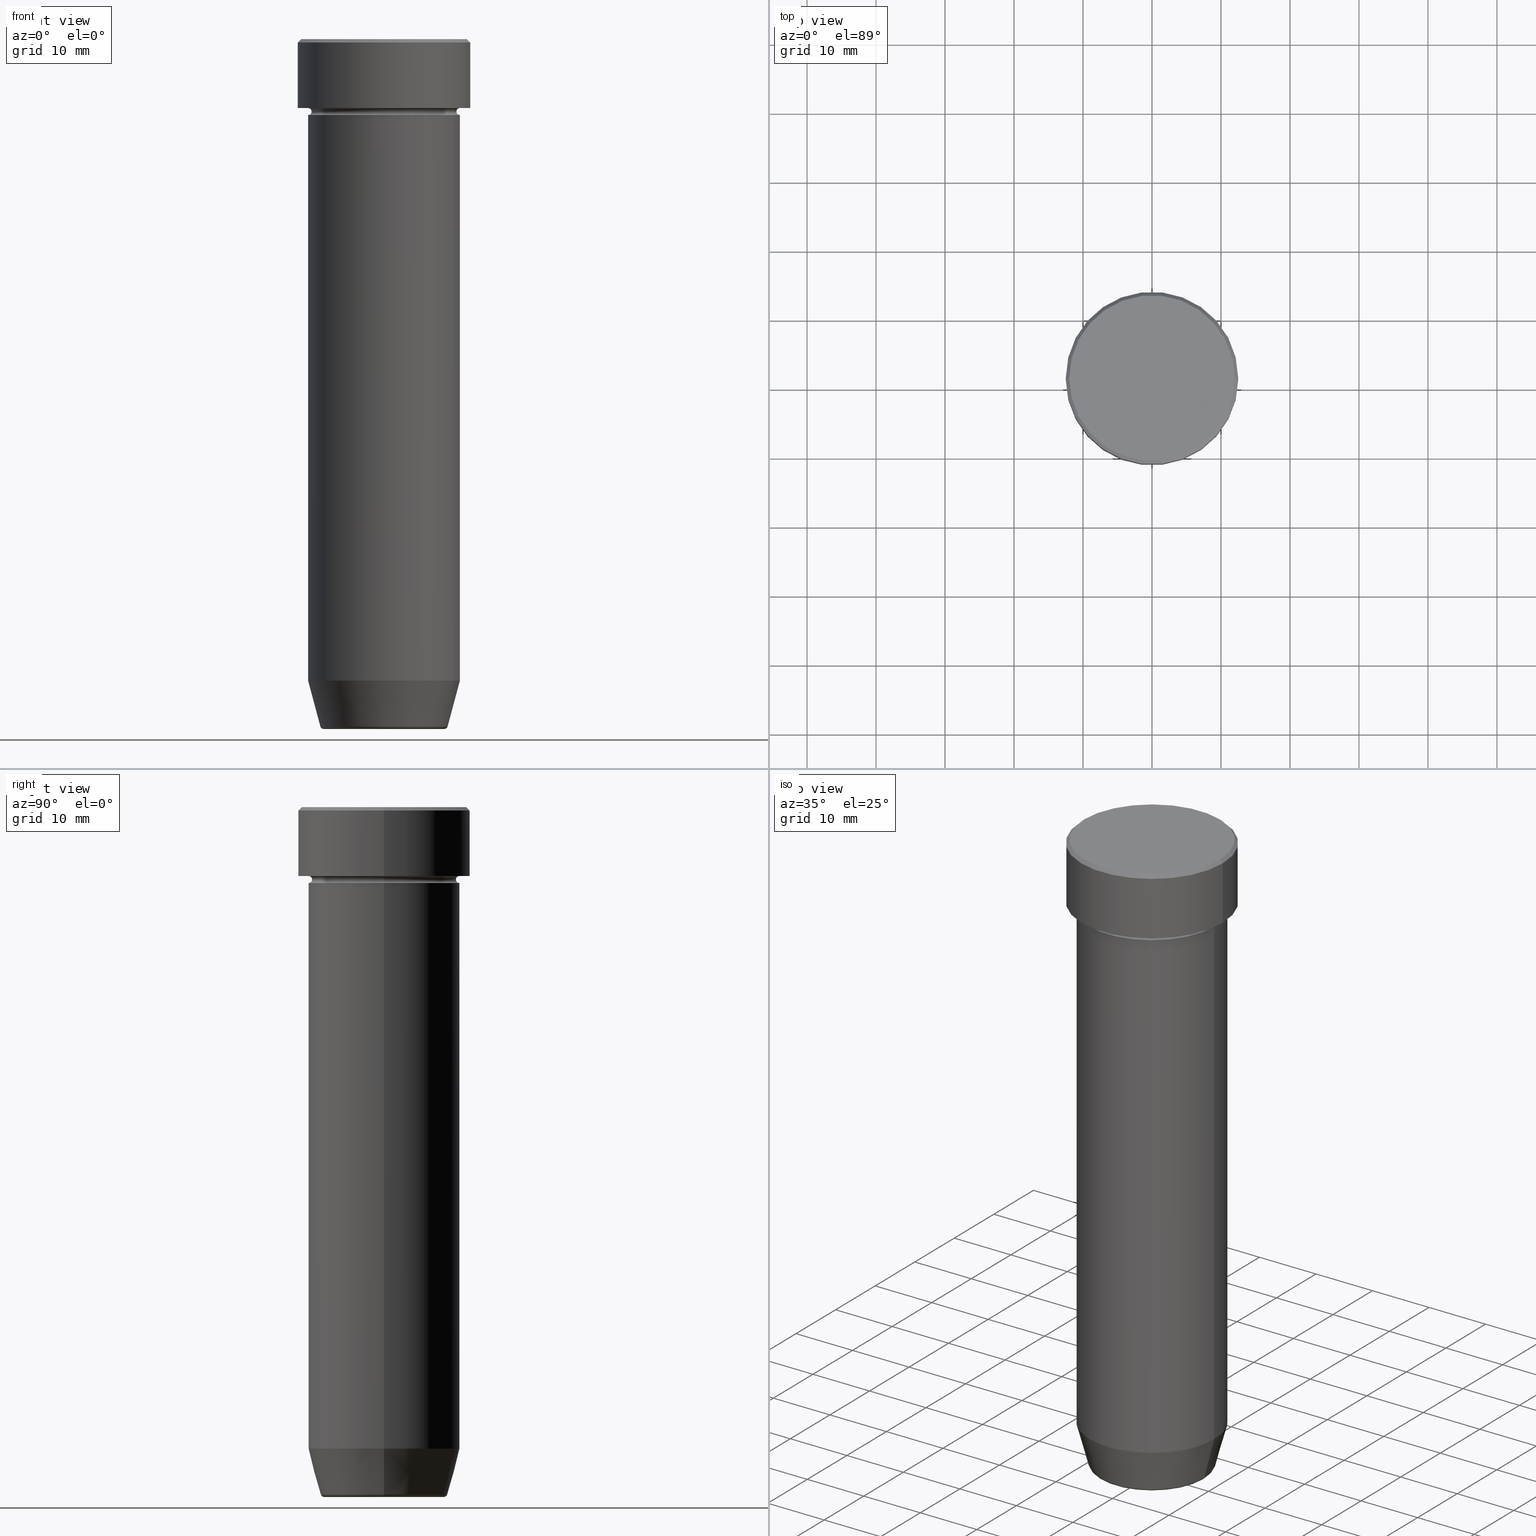
[diagram: canonical four-view strip — front | top / right | iso, engineering-drawing reading convention]
A machine part, canonical four-view strip (front | top / right | iso — engineering-drawing reading convention). The complete STEP part file that produces these views, byte-faithful:
ISO-10303-21;
HEADER;
FILE_DESCRIPTION (( 'STEP AP203' ),
    '1' );
FILE_NAME ('fc49.STEP',
    '2024-01-02T19:24:26',
    ( '' ),
    ( '' ),
    'SwSTEP 2.0',
    'SolidWorks 2019',
    '' );
FILE_SCHEMA (( 'CONFIG_CONTROL_DESIGN' ));
ENDSEC;

DATA;
#1 = FACE_OUTER_BOUND ( 'NONE', #457, .T. ) ;
#2 = EDGE_LOOP ( 'NONE', ( #22, #336, #278, #239 ) ) ;
#3 = DIRECTION ( 'NONE',  ( -0.000000000000000000, -0.000000000000000000, 1.000000000000000000 ) ) ;
#4 = EDGE_CURVE ( 'NONE', #300, #546, #279, .T. ) ;
#5 = CYLINDRICAL_SURFACE ( 'NONE', #135, 11.00000000000000000 ) ;
#6 = VECTOR ( 'NONE', #65, 1000.000000000000000 ) ;
#7 = FACE_OUTER_BOUND ( 'NONE', #100, .T. ) ;
#8 = PERSON_AND_ORGANIZATION ( #494, #15 ) ;
#9 = VERTEX_POINT ( 'NONE', #152 ) ;
#10 = AXIS2_PLACEMENT_3D ( 'NONE', #432, #479, #567 ) ;
#11 = DIRECTION ( 'NONE',  ( 1.000000000000000000, 0.000000000000000000, 0.000000000000000000 ) ) ;
#12 = ORIENTED_EDGE ( 'NONE', *, *, #108, .T. ) ;
#13 = DIRECTION ( 'NONE',  ( 1.000000000000000000, 0.000000000000000000, 0.000000000000000000 ) ) ;
#14 = CARTESIAN_POINT ( 'NONE',  ( -11.00000000000000000, 1.347111479062088405E-15, -10.49999999999999822 ) ) ;
#15 = ORGANIZATION ( 'NEUR�EN�', 'NEUR�EN�', '' ) ;
#16 = DIRECTION ( 'NONE',  ( 1.000000000000000000, 0.000000000000000000, 0.000000000000000000 ) ) ;
#17 = CARTESIAN_POINT ( 'NONE',  ( 0.000000000000000000, 6.123233995736766085E-15, -99.99999999999997158 ) ) ;
#18 = AXIS2_PLACEMENT_3D ( 'NONE', #364, #452, #372 ) ;
#19 = CC_DESIGN_PERSON_AND_ORGANIZATION_ASSIGNMENT ( #416, #598, ( #249 ) ) ;
#20 = CARTESIAN_POINT ( 'NONE',  ( 0.000000000000000000, 0.000000000000000000, 0.000000000000000000 ) ) ;
#21 = DIRECTION ( 'NONE',  ( 1.000000000000000000, 0.000000000000000000, 0.000000000000000000 ) ) ;
#22 = ORIENTED_EDGE ( 'NONE', *, *, #387, .F. ) ;
#23 =( GEOMETRIC_REPRESENTATION_CONTEXT ( 3 ) GLOBAL_UNCERTAINTY_ASSIGNED_CONTEXT ( ( #438 ) ) GLOBAL_UNIT_ASSIGNED_CONTEXT ( ( #281, #284, #186 ) ) REPRESENTATION_CONTEXT ( 'NONE', 'WORKASPACE' ) );
#24 = DIRECTION ( 'NONE',  ( -1.000000000000000000, 0.000000000000000000, 0.000000000000000000 ) ) ;
#25 = ORIENTED_EDGE ( 'NONE', *, *, #337, .T. ) ;
#26 = EDGE_CURVE ( 'NONE', #32, #211, #343, .T. ) ;
#27 = VECTOR ( 'NONE', #459, 1000.000000000000000 ) ;
#28 = DIRECTION ( 'NONE',  ( 0.000000000000000000, -1.000000000000000000, 0.000000000000000000 ) ) ;
#29 = ORIENTED_EDGE ( 'NONE', *, *, #276, .T. ) ;
#30 = ADVANCED_FACE ( 'NONE', ( #53, #520 ), #105, .T. ) ;
#31 = PLANE ( 'NONE',  #496 ) ;
#32 = VERTEX_POINT ( 'NONE', #251 ) ;
#33 = CARTESIAN_POINT ( 'NONE',  ( 0.000000000000000000, 0.000000000000000000, -10.50000000000000000 ) ) ;
#34 = CIRCLE ( 'NONE', #423, 8.740692158992654726 ) ;
#35 = ORIENTED_EDGE ( 'NONE', *, *, #387, .T. ) ;
#36 = VECTOR ( 'NONE', #210, 1000.000000000000000 ) ;
#37 = DIRECTION ( 'NONE',  ( -0.000000000000000000, -0.000000000000000000, 1.000000000000000000 ) ) ;
#38 = DATE_AND_TIME ( #407, #153 ) ;
#39 = ORIENTED_EDGE ( 'NONE', *, *, #4, .F. ) ;
#40 = CARTESIAN_POINT ( 'NONE',  ( 0.000000000000000000, 0.000000000000000000, -10.49999999999999822 ) ) ;
#41 = APPROVAL_STATUS ( 'not_yet_approved' ) ;
#42 = VERTEX_POINT ( 'NONE', #242 ) ;
#43 = EDGE_CURVE ( 'NONE', #546, #477, #166, .T. ) ;
#44 = DIRECTION ( 'NONE',  ( 1.000000000000000000, 0.000000000000000000, 0.000000000000000000 ) ) ;
#45 = DIRECTION ( 'NONE',  ( 1.000000000000000000, 0.000000000000000000, 0.000000000000000000 ) ) ;
#46 = EDGE_LOOP ( 'NONE', ( #501, #450, #194, #444 ) ) ;
#47 = VECTOR ( 'NONE', #146, 1000.000000000000000 ) ;
#48 = CARTESIAN_POINT ( 'NONE',  ( 11.00000000000000000, 0.000000000000000000, -27.00000000000000000 ) ) ;
#49 = ORIENTED_EDGE ( 'NONE', *, *, #544, .T. ) ;
#50 = AXIS2_PLACEMENT_3D ( 'NONE', #40, #82, #44 ) ;
#51 = PRODUCT_DEFINITION_SHAPE ( 'NONE', 'NONE',  #249 ) ;
#52 = DIRECTION ( 'NONE',  ( -0.000000000000000000, -0.000000000000000000, 1.000000000000000000 ) ) ;
#53 = FACE_BOUND ( 'NONE', #236, .T. ) ;
#54 = CARTESIAN_POINT ( 'NONE',  ( 0.000000000000000000, 0.000000000000000000, -99.49999999999997158 ) ) ;
#55 = VERTEX_POINT ( 'NONE', #346 ) ;
#56 = CC_DESIGN_APPROVAL ( #125, ( #249 ) ) ;
#57 = DIRECTION ( 'NONE',  ( 0.000000000000000000, 0.000000000000000000, -1.000000000000000000 ) ) ;
#58 = DATE_AND_TIME ( #469, #435 ) ;
#59 = AXIS2_PLACEMENT_3D ( 'NONE', #118, #307, #490 ) ;
#60 = ORIENTED_EDGE ( 'NONE', *, *, #179, .T. ) ;
#61 = CIRCLE ( 'NONE', #106, 12.00000000000000355 ) ;
#62 = CARTESIAN_POINT ( 'NONE',  ( 0.000000000000000000, 0.000000000000000000, 0.000000000000000000 ) ) ;
#63 = EDGE_LOOP ( 'NONE', ( #442, #39, #29, #517 ) ) ;
#64 = EDGE_CURVE ( 'NONE', #546, #300, #216, .T. ) ;
#65 = DIRECTION ( 'NONE',  ( 0.2588190451025217942, 0.000000000000000000, 0.9659258262890679791 ) ) ;
#66 = EDGE_LOOP ( 'NONE', ( #165, #474, #549, #508 ) ) ;
#67 = ADVANCED_FACE ( 'NONE', ( #422 ), #394, .F. ) ;
#68 = LOCAL_TIME ( 20, 24, 26.00000000000000000, #127 ) ;
#69 = DIRECTION ( 'NONE',  ( -1.000000000000000000, 0.000000000000000000, 0.000000000000000000 ) ) ;
#70 = CARTESIAN_POINT ( 'NONE',  ( 0.000000000000000000, 0.000000000000000000, -27.00000000000000000 ) ) ;
#71 = CONICAL_SURFACE ( 'NONE', #59, 12.00000000000000355, 0.7853981633974465026 ) ;
#72 = DIRECTION ( 'NONE',  ( 1.000000000000000000, 0.000000000000000000, 0.000000000000000000 ) ) ;
#73 = APPLICATION_CONTEXT ( 'configuration controlled 3d designs of mechanical parts and assemblies' ) ;
#74 = ADVANCED_FACE ( 'NONE', ( #571 ), #5, .T. ) ;
#75 = FACE_OUTER_BOUND ( 'NONE', #285, .T. ) ;
#76 = PERSON_AND_ORGANIZATION_ROLE ( 'design_supplier' ) ;
#77 = AXIS2_PLACEMENT_3D ( 'NONE', #277, #507, #409 ) ;
#78 = DIRECTION ( 'NONE',  ( -0.000000000000000000, -0.000000000000000000, 1.000000000000000000 ) ) ;
#79 = DIRECTION ( 'NONE',  ( -0.000000000000000000, -0.000000000000000000, 1.000000000000000000 ) ) ;
#80 = VERTEX_POINT ( 'NONE', #122 ) ;
#81 = MANIFOLD_SOLID_BREP ( 'Zaoblit4', #227 ) ;
#82 = DIRECTION ( 'NONE',  ( -0.000000000000000000, -0.000000000000000000, 1.000000000000000000 ) ) ;
#83 = ORIENTED_EDGE ( 'NONE', *, *, #4, .T. ) ;
#84 = CIRCLE ( 'NONE', #576, 0.5000000000000004441 ) ;
#85 = CARTESIAN_POINT ( 'NONE',  ( 0.000000000000000000, 0.000000000000000000, -11.00000000000000000 ) ) ;
#86 = ORIENTED_EDGE ( 'NONE', *, *, #362, .T. ) ;
#87 = AXIS2_PLACEMENT_3D ( 'NONE', #14, #203, #389 ) ;
#88 = CARTESIAN_POINT ( 'NONE',  ( 11.00000000000000000, 1.347111479062088405E-15, -10.00000000000000000 ) ) ;
#89 = EDGE_CURVE ( 'NONE', #55, #32, #61, .T. ) ;
#90 = EDGE_LOOP ( 'NONE', ( #168, #506 ) ) ;
#91 = CARTESIAN_POINT ( 'NONE',  ( 0.000000000000000000, 0.000000000000000000, -27.00000000000000000 ) ) ;
#92 = VERTEX_POINT ( 'NONE', #525 ) ;
#93 = CIRCLE ( 'NONE', #509, 11.00000000000000000 ) ;
#94 = DIRECTION ( 'NONE',  ( -0.000000000000000000, -0.000000000000000000, 1.000000000000000000 ) ) ;
#95 = ORIENTED_EDGE ( 'NONE', *, *, #379, .T. ) ;
#96 = TOROIDAL_SURFACE ( 'NONE', #198, 11.00000000000000000, 0.5000000000000000000 ) ;
#97 = CARTESIAN_POINT ( 'NONE',  ( 0.000000000000000000, 0.000000000000000000, -99.62940952255124216 ) ) ;
#98 = ORIENTED_EDGE ( 'NONE', *, *, #137, .T. ) ;
#99 = FACE_OUTER_BOUND ( 'NONE', #46, .T. ) ;
#100 = EDGE_LOOP ( 'NONE', ( #429, #147, #324, #201 ) ) ;
#101 = AXIS2_PLACEMENT_3D ( 'NONE', #157, #109, #69 ) ;
#102 = FACE_OUTER_BOUND ( 'NONE', #63, .T. ) ;
#103 = AXIS2_PLACEMENT_3D ( 'NONE', #160, #163, #529 ) ;
#104 = EDGE_CURVE ( 'NONE', #255, #80, #188, .T. ) ;
#105 = PLANE ( 'NONE',  #10 ) ;
#106 = AXIS2_PLACEMENT_3D ( 'NONE', #267, #573, #308 ) ;
#107 = DIRECTION ( 'NONE',  ( 1.000000000000000000, 0.000000000000000000, 0.000000000000000000 ) ) ;
#108 = EDGE_CURVE ( 'NONE', #546, #331, #173, .T. ) ;
#109 = DIRECTION ( 'NONE',  ( -0.000000000000000000, -0.000000000000000000, 1.000000000000000000 ) ) ;
#110 = CARTESIAN_POINT ( 'NONE',  ( 0.000000000000000000, 0.000000000000000000, 0.000000000000000000 ) ) ;
#111 = EDGE_CURVE ( 'NONE', #80, #255, #145, .T. ) ;
#112 = AXIS2_PLACEMENT_3D ( 'NONE', #472, #94, #154 ) ;
#113 = DESIGN_CONTEXT ( 'detailed design', #73, 'design' ) ;
#114 = DIRECTION ( 'NONE',  ( 0.000000000000000000, 0.000000000000000000, -1.000000000000000000 ) ) ;
#115 = AXIS2_PLACEMENT_3D ( 'NONE', #176, #545, #500 ) ;
#116 = EDGE_CURVE ( 'NONE', #32, #55, #436, .T. ) ;
#117 = CIRCLE ( 'NONE', #250, 11.00000000000000000 ) ;
#118 = CARTESIAN_POINT ( 'NONE',  ( 0.000000000000000000, 0.000000000000000000, 0.000000000000000000 ) ) ;
#119 = ORIENTED_EDGE ( 'NONE', *, *, #111, .F. ) ;
#120 = DIRECTION ( 'NONE',  ( 0.000000000000000000, 0.000000000000000000, -1.000000000000000000 ) ) ;
#121 = AXIS2_PLACEMENT_3D ( 'NONE', #54, #383, #243 ) ;
#122 = CARTESIAN_POINT ( 'NONE',  ( 12.50000000000000000, 0.000000000000000000, -10.00000000000000000 ) ) ;
#123 = EDGE_CURVE ( 'NONE', #318, #226, #84, .T. ) ;
#124 = CARTESIAN_POINT ( 'NONE',  ( 10.49999999999999822, 0.000000000000000000, -10.49999999999999822 ) ) ;
#125 = APPROVAL ( #373, 'NEUR�EN�' ) ;
#126 = DIRECTION ( 'NONE',  ( -1.000000000000000000, 0.000000000000000000, 0.000000000000000000 ) ) ;
#127 = COORDINATED_UNIVERSAL_TIME_OFFSET ( 1, 0, .AHEAD. ) ;
#128 = EDGE_LOOP ( 'NONE', ( #417, #377, #139, #192 ) ) ;
#129 = LINE ( 'NONE', #412, #371 ) ;
#130 = EDGE_LOOP ( 'NONE', ( #369, #158, #579, #513 ) ) ;
#131 = CARTESIAN_POINT ( 'NONE',  ( -11.00000000000000000, 1.347111479062088405E-15, 0.000000000000000000 ) ) ;
#132 = APPLICATION_PROTOCOL_DEFINITION ( 'international standard', 'config_control_design', 1994, #272 ) ;
#133 = APPROVAL_DATE_TIME ( #58, #498 ) ;
#134 = ORIENTED_EDGE ( 'NONE', *, *, #116, .T. ) ;
#135 = AXIS2_PLACEMENT_3D ( 'NONE', #110, #259, #534 ) ;
#136 = FACE_OUTER_BOUND ( 'NONE', #504, .T. ) ;
#137 = EDGE_CURVE ( 'NONE', #264, #9, #456, .T. ) ;
#138 = APPROVAL_ROLE ( '' ) ;
#139 = ORIENTED_EDGE ( 'NONE', *, *, #179, .F. ) ;
#140 = DIRECTION ( 'NONE',  ( 1.000000000000000000, 0.000000000000000000, 0.000000000000000000 ) ) ;
#141 = APPROVAL_STATUS ( 'not_yet_approved' ) ;
#142 = ORIENTED_EDGE ( 'NONE', *, *, #430, .T. ) ;
#143 = VECTOR ( 'NONE', #553, 1000.000000000000000 ) ;
#144 = ADVANCED_FACE ( 'NONE', ( #581 ), #217, .F. ) ;
#145 = CIRCLE ( 'NONE', #103, 12.50000000000000000 ) ;
#146 = DIRECTION ( 'NONE',  ( -0.2588190451025217942, 3.169619151431777884E-17, 0.9659258262890679791 ) ) ;
#147 = ORIENTED_EDGE ( 'NONE', *, *, #471, .T. ) ;
#148 = PRODUCT_RELATED_PRODUCT_CATEGORY ( 'detail', '', ( #419 ) ) ;
#149 = CARTESIAN_POINT ( 'NONE',  ( 11.00000000000000000, 0.000000000000000000, -11.00000000000000000 ) ) ;
#150 = EDGE_LOOP ( 'NONE', ( #593, #175 ) ) ;
#151 = DIRECTION ( 'NONE',  ( 1.000000000000000000, 0.000000000000000000, 0.000000000000000000 ) ) ;
#152 = CARTESIAN_POINT ( 'NONE',  ( -11.00000000000000000, 1.347111479062088405E-15, -92.99999999999998579 ) ) ;
#153 = LOCAL_TIME ( 20, 24, 26.00000000000000000, #225 ) ;
#154 = DIRECTION ( 'NONE',  ( 1.000000000000000000, 0.000000000000000000, 0.000000000000000000 ) ) ;
#155 = ORIENTED_EDGE ( 'NONE', *, *, #111, .T. ) ;
#156 = DATE_AND_TIME ( #568, #565 ) ;
#157 = CARTESIAN_POINT ( 'NONE',  ( 0.000000000000000000, 0.000000000000000000, -10.00000000000000000 ) ) ;
#158 = ORIENTED_EDGE ( 'NONE', *, *, #116, .F. ) ;
#159 = EDGE_CURVE ( 'NONE', #9, #92, #263, .T. ) ;
#160 = CARTESIAN_POINT ( 'NONE',  ( 0.000000000000000000, 0.000000000000000000, -10.00000000000000000 ) ) ;
#161 = ADVANCED_FACE ( 'NONE', ( #402 ), #311, .T. ) ;
#162 = CONICAL_SURFACE ( 'NONE', #222, 9.124355652982133691, 0.2617993877991505181 ) ;
#163 = DIRECTION ( 'NONE',  ( -0.000000000000000000, -0.000000000000000000, 1.000000000000000000 ) ) ;
#164 = PERSON_AND_ORGANIZATION ( #494, #15 ) ;
#165 = ORIENTED_EDGE ( 'NONE', *, *, #64, .F. ) ;
#166 = CIRCLE ( 'NONE', #87, 0.5000000000000004441 ) ;
#167 = CARTESIAN_POINT ( 'NONE',  ( 9.223655072137189492, 0.000000000000000000, -99.62940952255124216 ) ) ;
#168 = ORIENTED_EDGE ( 'NONE', *, *, #492, .T. ) ;
#169 = CC_DESIGN_SECURITY_CLASSIFICATION ( #405, ( #398 ) ) ;
#170 = CARTESIAN_POINT ( 'NONE',  ( 11.00000000000000000, 0.000000000000000000, -92.99999999999998579 ) ) ;
#171 = CIRCLE ( 'NONE', #512, 9.223655072137189492 ) ;
#172 = DIRECTION ( 'NONE',  ( -1.000000000000000000, -1.224646799147353454E-16, 0.000000000000000000 ) ) ;
#173 = CIRCLE ( 'NONE', #489, 0.5000000000000004441 ) ;
#174 = FACE_OUTER_BOUND ( 'NONE', #233, .T. ) ;
#175 = ORIENTED_EDGE ( 'NONE', *, *, #370, .F. ) ;
#176 = CARTESIAN_POINT ( 'NONE',  ( 0.000000000000000000, 0.000000000000000000, -27.00000000000000000 ) ) ;
#177 = DATE_AND_TIME ( #314, #68 ) ;
#178 = ORIENTED_EDGE ( 'NONE', *, *, #540, .F. ) ;
#179 = EDGE_CURVE ( 'NONE', #211, #408, #596, .T. ) ;
#180 = LINE ( 'NONE', #131, #536 ) ;
#181 = CC_DESIGN_APPROVAL ( #522, ( #398 ) ) ;
#182 = PERSON_AND_ORGANIZATION_ROLE ( 'design_owner' ) ;
#183 = ORIENTED_EDGE ( 'NONE', *, *, #191, .T. ) ;
#184 = CC_DESIGN_DATE_AND_TIME_ASSIGNMENT ( #177, #368, ( #249 ) ) ;
#185 = LINE ( 'NONE', #455, #245 ) ;
#186 =( NAMED_UNIT ( * ) SI_UNIT ( $, .STERADIAN. ) SOLID_ANGLE_UNIT ( ) );
#187 = EDGE_LOOP ( 'NONE', ( #98, #420, #434, #587 ) ) ;
#188 = CIRCLE ( 'NONE', #531, 12.50000000000000000 ) ;
#189 = APPROVAL_ROLE ( '' ) ;
#190 = CARTESIAN_POINT ( 'NONE',  ( 11.00000000000000000, 0.000000000000000000, 0.000000000000000000 ) ) ;
#191 = EDGE_CURVE ( 'NONE', #226, #380, #171, .T. ) ;
#192 = ORIENTED_EDGE ( 'NONE', *, *, #26, .F. ) ;
#193 = DIRECTION ( 'NONE',  ( -0.000000000000000000, -0.000000000000000000, 1.000000000000000000 ) ) ;
#194 = ORIENTED_EDGE ( 'NONE', *, *, #224, .T. ) ;
#195 = CIRCLE ( 'NONE', #288, 11.00000000000000000 ) ;
#196 = DIRECTION ( 'NONE',  ( 1.000000000000000000, 0.000000000000000000, 0.000000000000000000 ) ) ;
#197 = CARTESIAN_POINT ( 'NONE',  ( 0.000000000000000000, 0.000000000000000000, -10.49999999999999822 ) ) ;
#198 = AXIS2_PLACEMENT_3D ( 'NONE', #33, #228, #126 ) ;
#199 = ADVANCED_FACE ( 'NONE', ( #580 ), #71, .T. ) ;
#200 = CARTESIAN_POINT ( 'NONE',  ( 0.000000000000000000, 0.000000000000000000, 0.000000000000000000 ) ) ;
#201 = ORIENTED_EDGE ( 'NONE', *, *, #411, .F. ) ;
#202 = CARTESIAN_POINT ( 'NONE',  ( 9.124355652982133691, 0.000000000000000000, -99.99999999999997158 ) ) ;
#203 = DIRECTION ( 'NONE',  ( 1.224646799147353207E-16, 1.000000000000000000, 0.000000000000000000 ) ) ;
#204 = AXIS2_PLACEMENT_3D ( 'NONE', #569, #433, #205 ) ;
#205 = DIRECTION ( 'NONE',  ( -1.000000000000000000, 1.224646799147353454E-16, 0.000000000000000000 ) ) ;
#206 = AXIS2_PLACEMENT_3D ( 'NONE', #20, #527, #268 ) ;
#207 = DIRECTION ( 'NONE',  ( 1.000000000000000000, 0.000000000000000000, 0.000000000000000000 ) ) ;
#208 = DIRECTION ( 'NONE',  ( 1.000000000000000000, 0.000000000000000000, 0.000000000000000000 ) ) ;
#209 = DATE_TIME_ROLE ( 'classification_date' ) ;
#210 = DIRECTION ( 'NONE',  ( -0.000000000000000000, -0.000000000000000000, 1.000000000000000000 ) ) ;
#211 = VERTEX_POINT ( 'NONE', #443 ) ;
#212 = APPROVAL_PERSON_ORGANIZATION ( #453, #125, #548 ) ;
#213 = DIRECTION ( 'NONE',  ( -1.000000000000000000, 0.000000000000000000, 0.000000000000000000 ) ) ;
#214 = ORIENTED_EDGE ( 'NONE', *, *, #286, .F. ) ;
#215 = ADVANCED_FACE ( 'NONE', ( #75 ), #319, .F. ) ;
#216 = CIRCLE ( 'NONE', #320, 10.49999999999999822 ) ;
#217 = PLANE ( 'NONE',  #333 ) ;
#218 = EDGE_CURVE ( 'NONE', #331, #382, #117, .T. ) ;
#219 = CARTESIAN_POINT ( 'NONE',  ( 0.000000000000000000, 0.000000000000000000, -10.00000000000000000 ) ) ;
#220 = ORIENTED_EDGE ( 'NONE', *, *, #218, .T. ) ;
#221 = CC_DESIGN_DATE_AND_TIME_ASSIGNMENT ( #156, #209, ( #405 ) ) ;
#222 = AXIS2_PLACEMENT_3D ( 'NONE', #475, #521, #342 ) ;
#223 = CARTESIAN_POINT ( 'NONE',  ( 0.000000000000000000, 0.000000000000000000, 0.000000000000000000 ) ) ;
#224 = EDGE_CURVE ( 'NONE', #80, #408, #358, .T. ) ;
#225 = COORDINATED_UNIVERSAL_TIME_OFFSET ( 1, 0, .AHEAD. ) ;
#226 = VERTEX_POINT ( 'NONE', #167 ) ;
#227 = CLOSED_SHELL ( 'NONE', ( #451, #595, #499, #144, #74, #437, #67, #483 ) ) ;
#228 = DIRECTION ( 'NONE',  ( 0.000000000000000000, 0.000000000000000000, -1.000000000000000000 ) ) ;
#229 = ADVANCED_FACE ( 'NONE', ( #357 ), #31, .T. ) ;
#230 = DIRECTION ( 'NONE',  ( 1.000000000000000000, 0.000000000000000000, 0.000000000000000000 ) ) ;
#231 = ORIENTED_EDGE ( 'NONE', *, *, #108, .F. ) ;
#232 = CYLINDRICAL_SURFACE ( 'NONE', #426, 11.00000000000000000 ) ;
#233 = EDGE_LOOP ( 'NONE', ( #183, #142, #355, #178 ) ) ;
#234 = CARTESIAN_POINT ( 'NONE',  ( 0.000000000000000000, 0.000000000000000000, -0.4999999999999988343 ) ) ;
#235 = APPLICATION_PROTOCOL_DEFINITION ( 'international standard', 'config_control_design', 1994, #73 ) ;
#236 = EDGE_LOOP ( 'NONE', ( #220, #282 ) ) ;
#237 = DIRECTION ( 'NONE',  ( 1.000000000000000000, 0.000000000000000000, 0.000000000000000000 ) ) ;
#238 = AXIS2_PLACEMENT_3D ( 'NONE', #541, #467, #172 ) ;
#239 = ORIENTED_EDGE ( 'NONE', *, *, #123, .F. ) ;
#240 = ADVANCED_FACE ( 'NONE', ( #589 ), #273, .T. ) ;
#241 = DIRECTION ( 'NONE',  ( 0.000000000000000000, 0.000000000000000000, -1.000000000000000000 ) ) ;
#242 = CARTESIAN_POINT ( 'NONE',  ( -11.00000000000000000, 1.347111479062088405E-15, -27.00000000000000000 ) ) ;
#243 = DIRECTION ( 'NONE',  ( 1.000000000000000000, 0.000000000000000000, 0.000000000000000000 ) ) ;
#244 = ORIENTED_EDGE ( 'NONE', *, *, #104, .F. ) ;
#245 = VECTOR ( 'NONE', #592, 999.9999999999998863 ) ;
#246 = CARTESIAN_POINT ( 'NONE',  ( 0.000000000000000000, 11.00000000000000000, -27.00000000000000000 ) ) ;
#247 = ORIENTED_EDGE ( 'NONE', *, *, #218, .F. ) ;
#248 = TOROIDAL_SURFACE ( 'NONE', #50, 11.00000000000000000, 0.5000000000000000000 ) ;
#249 = PRODUCT_DEFINITION ( 'NEZN�M�', '', #398, #113 ) ;
#250 = AXIS2_PLACEMENT_3D ( 'NONE', #491, #78, #213 ) ;
#251 = CARTESIAN_POINT ( 'NONE',  ( -12.00000000000000355, 0.000000000000000000, 0.000000000000000000 ) ) ;
#252 = APPROVAL_DATE_TIME ( #441, #522 ) ;
#253 = EDGE_CURVE ( 'NONE', #413, #477, #335, .T. ) ;
#254 = LINE ( 'NONE', #190, #143 ) ;
#255 = VERTEX_POINT ( 'NONE', #317 ) ;
#256 = CIRCLE ( 'NONE', #101, 11.00000000000000000 ) ;
#257 = AXIS2_PLACEMENT_3D ( 'NONE', #246, #57, #557 ) ;
#258 = EDGE_CURVE ( 'NONE', #92, #591, #292, .T. ) ;
#259 = DIRECTION ( 'NONE',  ( -0.000000000000000000, -0.000000000000000000, 1.000000000000000000 ) ) ;
#260 = PERSON_AND_ORGANIZATION ( #494, #15 ) ;
#261 = CLOSED_SHELL ( 'NONE', ( #161, #215, #306, #332, #476, #448, #229, #480, #30, #240, #533, #326, #199 ) ) ;
#262 = AXIS2_PLACEMENT_3D ( 'NONE', #367, #538, #287 ) ;
#263 = LINE ( 'NONE', #310, #36 ) ;
#264 = VERTEX_POINT ( 'NONE', #170 ) ;
#265 = DIRECTION ( 'NONE',  ( 0.000000000000000000, 0.000000000000000000, -1.000000000000000000 ) ) ;
#266 = AXIS2_PLACEMENT_3D ( 'NONE', #200, #193, #196 ) ;
#267 = CARTESIAN_POINT ( 'NONE',  ( 0.000000000000000000, 0.000000000000000000, 0.000000000000000000 ) ) ;
#268 = DIRECTION ( 'NONE',  ( 1.000000000000000000, 0.000000000000000000, 0.000000000000000000 ) ) ;
#269 = MANIFOLD_SOLID_BREP ( 'Zkosen�1', #261 ) ;
#270 = CC_DESIGN_PERSON_AND_ORGANIZATION_ASSIGNMENT ( #260, #76, ( #398 ) ) ;
#271 = CALENDAR_DATE ( 2024, 2, 1 ) ;
#272 = APPLICATION_CONTEXT ( 'configuration controlled 3d designs of mechanical parts and assemblies' ) ;
#273 = CYLINDRICAL_SURFACE ( 'NONE', #18, 11.00000000000000000 ) ;
#274 = ORIENTED_EDGE ( 'NONE', *, *, #554, .F. ) ;
#275 = TOROIDAL_SURFACE ( 'NONE', #298, 11.00000000000000000, 0.5000000000000000000 ) ;
#276 = EDGE_CURVE ( 'NONE', #300, #413, #570, .T. ) ;
#277 = CARTESIAN_POINT ( 'NONE',  ( 0.000000000000000000, 0.000000000000000000, -27.00000000000000000 ) ) ;
#278 = ORIENTED_EDGE ( 'NONE', *, *, #191, .F. ) ;
#279 = CIRCLE ( 'NONE', #578, 10.49999999999999822 ) ;
#280 = DIRECTION ( 'NONE',  ( 0.000000000000000000, -0.000000000000000000, 1.000000000000000000 ) ) ;
#281 =( LENGTH_UNIT ( ) NAMED_UNIT ( * ) SI_UNIT ( .MILLI., .METRE. ) );
#282 = ORIENTED_EDGE ( 'NONE', *, *, #582, .T. ) ;
#283 = DIRECTION ( 'NONE',  ( 0.000000000000000000, 0.000000000000000000, -1.000000000000000000 ) ) ;
#284 =( NAMED_UNIT ( * ) PLANE_ANGLE_UNIT ( ) SI_UNIT ( $, .RADIAN. ) );
#285 = EDGE_LOOP ( 'NONE', ( #462, #558, #247, #231 ) ) ;
#286 = EDGE_CURVE ( 'NONE', #300, #382, #347, .T. ) ;
#287 = DIRECTION ( 'NONE',  ( 0.000000000000000000, 0.000000000000000000, -1.000000000000000000 ) ) ;
#288 = AXIS2_PLACEMENT_3D ( 'NONE', #299, #52, #566 ) ;
#289 = EDGE_LOOP ( 'NONE', ( #134, #532 ) ) ;
#290 = AXIS2_PLACEMENT_3D ( 'NONE', #488, #440, #21 ) ;
#291 = FACE_OUTER_BOUND ( 'NONE', #384, .T. ) ;
#292 = CIRCLE ( 'NONE', #447, 11.00000000000000000 ) ;
#293 = DIRECTION ( 'NONE',  ( 1.000000000000000000, 0.000000000000000000, 0.000000000000000000 ) ) ;
#294 = CARTESIAN_POINT ( 'NONE',  ( 0.000000000000000000, 0.000000000000000000, 0.000000000000000000 ) ) ;
#295 = ORIENTED_EDGE ( 'NONE', *, *, #370, .T. ) ;
#296 = CARTESIAN_POINT ( 'NONE',  ( 12.50000000000000000, 0.000000000000000000, -0.4999999999999988343 ) ) ;
#297 = ORIENTED_EDGE ( 'NONE', *, *, #258, .F. ) ;
#298 = AXIS2_PLACEMENT_3D ( 'NONE', #481, #301, #13 ) ;
#299 = CARTESIAN_POINT ( 'NONE',  ( 0.000000000000000000, 0.000000000000000000, -92.99999999999998579 ) ) ;
#300 = VERTEX_POINT ( 'NONE', #124 ) ;
#301 = DIRECTION ( 'NONE',  ( -0.000000000000000000, -0.000000000000000000, 1.000000000000000000 ) ) ;
#302 = DIRECTION ( 'NONE',  ( 0.000000000000000000, -0.000000000000000000, 1.000000000000000000 ) ) ;
#303 = DIRECTION ( 'NONE',  ( 1.000000000000000000, 0.000000000000000000, 0.000000000000000000 ) ) ;
#304 = CARTESIAN_POINT ( 'NONE',  ( -11.00000000000000000, 0.000000000000000000, -10.50000000000000000 ) ) ;
#305 = DIRECTION ( 'NONE',  ( -1.000000000000000000, 0.000000000000000000, 0.000000000000000000 ) ) ;
#306 = ADVANCED_FACE ( 'NONE', ( #418 ), #248, .F. ) ;
#307 = DIRECTION ( 'NONE',  ( 0.000000000000000000, 0.000000000000000000, -1.000000000000000000 ) ) ;
#308 = DIRECTION ( 'NONE',  ( 1.000000000000000000, 0.000000000000000000, 0.000000000000000000 ) ) ;
#309 = TOROIDAL_SURFACE ( 'NONE', #121, 8.740692158992654726, 0.5000000000000000000 ) ;
#310 = CARTESIAN_POINT ( 'NONE',  ( -11.00000000000000000, 1.347111479062088405E-15, 0.000000000000000000 ) ) ;
#311 = CONICAL_SURFACE ( 'NONE', #537, 12.00000000000000355, 0.7853981633974465026 ) ;
#312 = FACE_OUTER_BOUND ( 'NONE', #404, .T. ) ;
#313 = CARTESIAN_POINT ( 'NONE',  ( 11.00000000000000000, 0.000000000000000000, 0.000000000000000000 ) ) ;
#314 = CALENDAR_DATE ( 2024, 2, 1 ) ;
#315 = VERTEX_POINT ( 'NONE', #48 ) ;
#316 = AXIS2_PLACEMENT_3D ( 'NONE', #468, #584, #45 ) ;
#317 = CARTESIAN_POINT ( 'NONE',  ( -12.50000000000000000, 1.530808498934191521E-15, -10.00000000000000000 ) ) ;
#318 = VERTEX_POINT ( 'NONE', #503 ) ;
#319 = TOROIDAL_SURFACE ( 'NONE', #356, 11.00000000000000000, 0.5000000000000000000 ) ;
#320 = AXIS2_PLACEMENT_3D ( 'NONE', #197, #523, #107 ) ;
#321 = DIRECTION ( 'NONE',  ( -0.000000000000000000, -0.000000000000000000, 1.000000000000000000 ) ) ;
#322 = EDGE_CURVE ( 'NONE', #408, #211, #588, .T. ) ;
#323 = COORDINATED_UNIVERSAL_TIME_OFFSET ( 1, 0, .AHEAD. ) ;
#324 = ORIENTED_EDGE ( 'NONE', *, *, #540, .T. ) ;
#325 = DIRECTION ( 'NONE',  ( -0.000000000000000000, -0.000000000000000000, 1.000000000000000000 ) ) ;
#326 = ADVANCED_FACE ( 'NONE', ( #312 ), #96, .F. ) ;
#327 = CARTESIAN_POINT ( 'NONE',  ( 11.00000000000000000, 0.000000000000000000, -27.00000000000000000 ) ) ;
#328 = SHAPE_DEFINITION_REPRESENTATION ( #51, #339 ) ;
#329 = ORIENTED_EDGE ( 'NONE', *, *, #575, .F. ) ;
#330 = CARTESIAN_POINT ( 'NONE',  ( -10.49999999999999822, 1.316495309083404420E-15, -10.49999999999999822 ) ) ;
#331 = VERTEX_POINT ( 'NONE', #497 ) ;
#332 = ADVANCED_FACE ( 'NONE', ( #136 ), #232, .T. ) ;
#333 = AXIS2_PLACEMENT_3D ( 'NONE', #70, #449, #349 ) ;
#334 = LINE ( 'NONE', #511, #47 ) ;
#335 = CIRCLE ( 'NONE', #530, 11.00000000000000000 ) ;
#336 = ORIENTED_EDGE ( 'NONE', *, *, #575, .T. ) ;
#337 = EDGE_CURVE ( 'NONE', #264, #591, #586, .T. ) ;
#338 = DIRECTION ( 'NONE',  ( -0.000000000000000000, -0.000000000000000000, 1.000000000000000000 ) ) ;
#339 = ADVANCED_BREP_SHAPE_REPRESENTATION ( 'fc49', ( #269, #81, #316 ), #23 ) ;
#340 = ORIENTED_EDGE ( 'NONE', *, *, #159, .F. ) ;
#341 = CC_DESIGN_PERSON_AND_ORGANIZATION_ASSIGNMENT ( #164, #354, ( #398 ) ) ;
#342 = DIRECTION ( 'NONE',  ( 1.000000000000000000, 0.000000000000000000, 0.000000000000000000 ) ) ;
#343 = LINE ( 'NONE', #473, #559 ) ;
#344 = AXIS2_PLACEMENT_3D ( 'NONE', #97, #478, #421 ) ;
#345 = CYLINDRICAL_SURFACE ( 'NONE', #266, 12.50000000000000000 ) ;
#346 = CARTESIAN_POINT ( 'NONE',  ( 12.00000000000000355, 1.500192328955507734E-15, 0.000000000000000000 ) ) ;
#347 = CIRCLE ( 'NONE', #238, 0.5000000000000004441 ) ;
#348 = CARTESIAN_POINT ( 'NONE',  ( 0.000000000000000000, 0.000000000000000000, -11.00000000000000000 ) ) ;
#349 = DIRECTION ( 'NONE',  ( -1.000000000000000000, 0.000000000000000000, -0.000000000000000000 ) ) ;
#350 = CARTESIAN_POINT ( 'NONE',  ( 0.000000000000000000, 0.000000000000000000, 0.000000000000000000 ) ) ;
#351 = PERSON_AND_ORGANIZATION ( #494, #15 ) ;
#352 = AXIS2_PLACEMENT_3D ( 'NONE', #524, #484, #16 ) ;
#353 = DIRECTION ( 'NONE',  ( 0.000000000000000000, 0.000000000000000000, -1.000000000000000000 ) ) ;
#354 = PERSON_AND_ORGANIZATION_ROLE ( 'creator' ) ;
#355 = ORIENTED_EDGE ( 'NONE', *, *, #137, .F. ) ;
#356 = AXIS2_PLACEMENT_3D ( 'NONE', #495, #265, #24 ) ;
#357 = FACE_OUTER_BOUND ( 'NONE', #289, .T. ) ;
#358 = LINE ( 'NONE', #399, #458 ) ;
#359 = EDGE_CURVE ( 'NONE', #315, #42, #528, .T. ) ;
#360 = AXIS2_PLACEMENT_3D ( 'NONE', #62, #338, #151 ) ;
#361 = DIRECTION ( 'NONE',  ( 1.000000000000000000, 0.000000000000000000, 0.000000000000000000 ) ) ;
#362 = EDGE_CURVE ( 'NONE', #255, #211, #129, .T. ) ;
#363 = AXIS2_PLACEMENT_3D ( 'NONE', #234, #283, #415 ) ;
#364 = CARTESIAN_POINT ( 'NONE',  ( 0.000000000000000000, 0.000000000000000000, 0.000000000000000000 ) ) ;
#365 = DIRECTION ( 'NONE',  ( -0.000000000000000000, -0.000000000000000000, 1.000000000000000000 ) ) ;
#366 = ORIENTED_EDGE ( 'NONE', *, *, #562, .T. ) ;
#367 = CARTESIAN_POINT ( 'NONE',  ( 11.00000000000000000, 0.000000000000000000, -10.49999999999999822 ) ) ;
#368 = DATE_TIME_ROLE ( 'creation_date' ) ;
#369 = ORIENTED_EDGE ( 'NONE', *, *, #375, .F. ) ;
#370 = EDGE_CURVE ( 'NONE', #42, #315, #445, .T. ) ;
#371 = VECTOR ( 'NONE', #597, 1000.000000000000000 ) ;
#372 = DIRECTION ( 'NONE',  ( 1.000000000000000000, 0.000000000000000000, 0.000000000000000000 ) ) ;
#373 = APPROVAL_STATUS ( 'not_yet_approved' ) ;
#374 = ORIENTED_EDGE ( 'NONE', *, *, #544, .F. ) ;
#375 = EDGE_CURVE ( 'NONE', #55, #408, #185, .T. ) ;
#376 = DIRECTION ( 'NONE',  ( 1.000000000000000000, 0.000000000000000000, 0.000000000000000000 ) ) ;
#377 = ORIENTED_EDGE ( 'NONE', *, *, #375, .T. ) ;
#378 = PLANE ( 'NONE',  #257 ) ;
#379 = EDGE_CURVE ( 'NONE', #42, #477, #180, .T. ) ;
#380 = VERTEX_POINT ( 'NONE', #505 ) ;
#381 = FACE_OUTER_BOUND ( 'NONE', #150, .T. ) ;
#382 = VERTEX_POINT ( 'NONE', #88 ) ;
#383 = DIRECTION ( 'NONE',  ( -0.000000000000000000, -0.000000000000000000, 1.000000000000000000 ) ) ;
#384 = EDGE_LOOP ( 'NONE', ( #329, #401, #465, #585 ) ) ;
#385 = CARTESIAN_POINT ( 'NONE',  ( 0.000000000000000000, 0.000000000000000000, -27.00000000000000000 ) ) ;
#386 = CARTESIAN_POINT ( 'NONE',  ( 0.000000000000000000, 0.000000000000000000, -10.49999999999999822 ) ) ;
#387 = EDGE_CURVE ( 'NONE', #425, #318, #34, .T. ) ;
#388 = CARTESIAN_POINT ( 'NONE',  ( -11.00000000000000000, 1.347111479062088405E-15, -11.00000000000000000 ) ) ;
#389 = DIRECTION ( 'NONE',  ( -1.000000000000000000, 1.224646799147353454E-16, 0.000000000000000000 ) ) ;
#390 = AXIS2_PLACEMENT_3D ( 'NONE', #294, #3, #11 ) ;
#391 = PERSON_AND_ORGANIZATION_ROLE ( 'classification_officer' ) ;
#392 = COORDINATED_UNIVERSAL_TIME_OFFSET ( 1, 0, .AHEAD. ) ;
#393 = DIRECTION ( 'NONE',  ( -0.000000000000000000, -0.000000000000000000, 1.000000000000000000 ) ) ;
#394 = PLANE ( 'NONE',  #428 ) ;
#395 = DIRECTION ( 'NONE',  ( -0.000000000000000000, -0.000000000000000000, 1.000000000000000000 ) ) ;
#396 = CARTESIAN_POINT ( 'NONE',  ( 0.000000000000000000, 0.000000000000000000, -99.62940952255124216 ) ) ;
#397 = EDGE_LOOP ( 'NONE', ( #366, #35 ) ) ;
#398 = PRODUCT_DEFINITION_FORMATION_WITH_SPECIFIED_SOURCE ( 'LIBOVOLN�', '', #419, .NOT_KNOWN. ) ;
#399 = CARTESIAN_POINT ( 'NONE',  ( 12.50000000000000000, 0.000000000000000000, 0.000000000000000000 ) ) ;
#400 = SECURITY_CLASSIFICATION_LEVEL ( 'unclassified' ) ;
#401 = ORIENTED_EDGE ( 'NONE', *, *, #562, .F. ) ;
#402 = FACE_OUTER_BOUND ( 'NONE', #128, .T. ) ;
#403 = CARTESIAN_POINT ( 'NONE',  ( 0.000000000000000000, 0.000000000000000000, 0.000000000000000000 ) ) ;
#404 = EDGE_LOOP ( 'NONE', ( #214, #83, #12, #543 ) ) ;
#405 = SECURITY_CLASSIFICATION ( '', '', #400 ) ;
#406 = DIRECTION ( 'NONE',  ( 1.000000000000000000, 0.000000000000000000, 0.000000000000000000 ) ) ;
#407 = CALENDAR_DATE ( 2024, 2, 1 ) ;
#408 = VERTEX_POINT ( 'NONE', #296 ) ;
#409 = DIRECTION ( 'NONE',  ( 1.000000000000000000, 0.000000000000000000, 0.000000000000000000 ) ) ;
#410 = ORIENTED_EDGE ( 'NONE', *, *, #253, .F. ) ;
#411 = EDGE_CURVE ( 'NONE', #9, #264, #195, .T. ) ;
#412 = CARTESIAN_POINT ( 'NONE',  ( -12.50000000000000000, 1.530808498934191521E-15, 0.000000000000000000 ) ) ;
#413 = VERTEX_POINT ( 'NONE', #149 ) ;
#414 = AXIS2_PLACEMENT_3D ( 'NONE', #385, #516, #519 ) ;
#415 = DIRECTION ( 'NONE',  ( 1.000000000000000000, 0.000000000000000000, 0.000000000000000000 ) ) ;
#416 = PERSON_AND_ORGANIZATION ( #494, #15 ) ;
#417 = ORIENTED_EDGE ( 'NONE', *, *, #89, .F. ) ;
#418 = FACE_OUTER_BOUND ( 'NONE', #66, .T. ) ;
#419 = PRODUCT ( 'fc49', 'fc49', '', ( #551 ) ) ;
#420 = ORIENTED_EDGE ( 'NONE', *, *, #159, .T. ) ;
#421 = DIRECTION ( 'NONE',  ( -1.000000000000000000, 0.000000000000000000, 0.000000000000000000 ) ) ;
#422 = FACE_OUTER_BOUND ( 'NONE', #397, .T. ) ;
#423 = AXIS2_PLACEMENT_3D ( 'NONE', #550, #241, #140 ) ;
#424 = CARTESIAN_POINT ( 'NONE',  ( -8.740692158992654726, 1.099999016768739259E-15, -99.99999999999997158 ) ) ;
#425 = VERTEX_POINT ( 'NONE', #424 ) ;
#426 = AXIS2_PLACEMENT_3D ( 'NONE', #223, #37, #406 ) ;
#427 = CYLINDRICAL_SURFACE ( 'NONE', #390, 12.50000000000000000 ) ;
#428 = AXIS2_PLACEMENT_3D ( 'NONE', #17, #302, #207 ) ;
#429 = ORIENTED_EDGE ( 'NONE', *, *, #430, .F. ) ;
#430 = EDGE_CURVE ( 'NONE', #380, #9, #334, .T. ) ;
#431 = LINE ( 'NONE', #202, #6 ) ;
#432 = CARTESIAN_POINT ( 'NONE',  ( 0.000000000000000000, 12.50000000000000000, -10.00000000000000000 ) ) ;
#433 = DIRECTION ( 'NONE',  ( 1.224646799147353207E-16, 1.000000000000000000, 0.000000000000000000 ) ) ;
#434 = ORIENTED_EDGE ( 'NONE', *, *, #492, .F. ) ;
#435 = LOCAL_TIME ( 20, 24, 26.00000000000000000, #323 ) ;
#436 = CIRCLE ( 'NONE', #206, 12.00000000000000355 ) ;
#437 = ADVANCED_FACE ( 'NONE', ( #7 ), #162, .T. ) ;
#438 = UNCERTAINTY_MEASURE_WITH_UNIT (LENGTH_MEASURE( 1.000000000000000082E-05 ), #281, 'distance_accuracy_value', 'NONE');
#439 = DIRECTION ( 'NONE',  ( -0.000000000000000000, -1.000000000000000000, -0.000000000000000000 ) ) ;
#440 = DIRECTION ( 'NONE',  ( 0.000000000000000000, 0.000000000000000000, -1.000000000000000000 ) ) ;
#441 = DATE_AND_TIME ( #271, #493 ) ;
#442 = ORIENTED_EDGE ( 'NONE', *, *, #43, .F. ) ;
#443 = CARTESIAN_POINT ( 'NONE',  ( -12.50000000000000000, 1.530808498934191521E-15, -0.4999999999999988343 ) ) ;
#444 = ORIENTED_EDGE ( 'NONE', *, *, #322, .T. ) ;
#445 = CIRCLE ( 'NONE', #77, 11.00000000000000000 ) ;
#446 = CARTESIAN_POINT ( 'NONE',  ( 8.740692158992654726, 0.000000000000000000, -99.49999999999997158 ) ) ;
#447 = AXIS2_PLACEMENT_3D ( 'NONE', #91, #463, #376 ) ;
#448 = ADVANCED_FACE ( 'NONE', ( #381 ), #378, .T. ) ;
#449 = DIRECTION ( 'NONE',  ( 0.000000000000000000, 0.000000000000000000, -1.000000000000000000 ) ) ;
#450 = ORIENTED_EDGE ( 'NONE', *, *, #104, .T. ) ;
#451 = ADVANCED_FACE ( 'NONE', ( #514 ), #466, .T. ) ;
#452 = DIRECTION ( 'NONE',  ( -0.000000000000000000, -0.000000000000000000, 1.000000000000000000 ) ) ;
#453 = PERSON_AND_ORGANIZATION ( #494, #15 ) ;
#454 = ORIENTED_EDGE ( 'NONE', *, *, #411, .T. ) ;
#455 = CARTESIAN_POINT ( 'NONE',  ( 12.00000000000000355, 1.469576158976824342E-15, 0.000000000000000000 ) ) ;
#456 = CIRCLE ( 'NONE', #487, 11.00000000000000000 ) ;
#457 = EDGE_LOOP ( 'NONE', ( #155, #86, #60, #470 ) ) ;
#458 = VECTOR ( 'NONE', #577, 1000.000000000000000 ) ;
#459 = DIRECTION ( 'NONE',  ( -0.000000000000000000, -0.000000000000000000, 1.000000000000000000 ) ) ;
#460 = CC_DESIGN_PERSON_AND_ORGANIZATION_ASSIGNMENT ( #590, #182, ( #419 ) ) ;
#461 = PERSON_AND_ORGANIZATION ( #494, #15 ) ;
#462 = ORIENTED_EDGE ( 'NONE', *, *, #64, .T. ) ;
#463 = DIRECTION ( 'NONE',  ( -0.000000000000000000, -0.000000000000000000, 1.000000000000000000 ) ) ;
#464 = CARTESIAN_POINT ( 'NONE',  ( 0.000000000000000000, 0.000000000000000000, -99.99999999999997158 ) ) ;
#465 = ORIENTED_EDGE ( 'NONE', *, *, #123, .T. ) ;
#466 = TOROIDAL_SURFACE ( 'NONE', #112, 8.740692158992654726, 0.5000000000000000000 ) ;
#467 = DIRECTION ( 'NONE',  ( -1.224646799147353207E-16, 1.000000000000000000, 0.000000000000000000 ) ) ;
#468 = CARTESIAN_POINT ( 'NONE',  ( 0.000000000000000000, 0.000000000000000000, 0.000000000000000000 ) ) ;
#469 = CALENDAR_DATE ( 2024, 2, 1 ) ;
#470 = ORIENTED_EDGE ( 'NONE', *, *, #224, .F. ) ;
#471 = EDGE_CURVE ( 'NONE', #380, #226, #526, .T. ) ;
#472 = CARTESIAN_POINT ( 'NONE',  ( 0.000000000000000000, 0.000000000000000000, -99.49999999999997158 ) ) ;
#473 = CARTESIAN_POINT ( 'NONE',  ( -12.00000000000000355, 0.000000000000000000, 0.000000000000000000 ) ) ;
#474 = ORIENTED_EDGE ( 'NONE', *, *, #43, .T. ) ;
#475 = CARTESIAN_POINT ( 'NONE',  ( 0.000000000000000000, 0.000000000000000000, -99.99999999999997158 ) ) ;
#476 = ADVANCED_FACE ( 'NONE', ( #1 ), #427, .T. ) ;
#477 = VERTEX_POINT ( 'NONE', #388 ) ;
#478 = DIRECTION ( 'NONE',  ( -0.000000000000000000, -0.000000000000000000, 1.000000000000000000 ) ) ;
#479 = DIRECTION ( 'NONE',  ( 0.000000000000000000, 0.000000000000000000, -1.000000000000000000 ) ) ;
#480 = ADVANCED_FACE ( 'NONE', ( #99 ), #345, .T. ) ;
#481 = CARTESIAN_POINT ( 'NONE',  ( 0.000000000000000000, 0.000000000000000000, -10.49999999999999822 ) ) ;
#482 = ORIENTED_EDGE ( 'NONE', *, *, #379, .F. ) ;
#483 = ADVANCED_FACE ( 'NONE', ( #291 ), #309, .T. ) ;
#484 = DIRECTION ( 'NONE',  ( 0.000000000000000000, 0.000000000000000000, -1.000000000000000000 ) ) ;
#485 = CIRCLE ( 'NONE', #204, 0.5000000000000004441 ) ;
#486 = CARTESIAN_POINT ( 'NONE',  ( 0.000000000000000000, 0.000000000000000000, -92.99999999999998579 ) ) ;
#487 = AXIS2_PLACEMENT_3D ( 'NONE', #486, #395, #208 ) ;
#488 = CARTESIAN_POINT ( 'NONE',  ( 0.000000000000000000, 0.000000000000000000, -0.4999999999999988343 ) ) ;
#489 = AXIS2_PLACEMENT_3D ( 'NONE', #304, #439, #120 ) ;
#490 = DIRECTION ( 'NONE',  ( -1.000000000000000000, 0.000000000000000000, 0.000000000000000000 ) ) ;
#491 = CARTESIAN_POINT ( 'NONE',  ( 0.000000000000000000, 0.000000000000000000, -10.00000000000000000 ) ) ;
#492 = EDGE_CURVE ( 'NONE', #591, #92, #502, .T. ) ;
#493 = LOCAL_TIME ( 20, 24, 26.00000000000000000, #392 ) ;
#494 = PERSON ( 'NEUR�EN�', 'NEUR�EN�', 'NEUR�EN�', ('NEUR�EN�'), ('NEUR�EN�'), ('NEUR�EN�') ) ;
#495 = CARTESIAN_POINT ( 'NONE',  ( 0.000000000000000000, 0.000000000000000000, -10.50000000000000000 ) ) ;
#496 = AXIS2_PLACEMENT_3D ( 'NONE', #403, #280, #237 ) ;
#497 = CARTESIAN_POINT ( 'NONE',  ( -11.00000000000000000, 0.000000000000000000, -10.00000000000000000 ) ) ;
#498 = APPROVAL ( #141, 'NEUR�EN�' ) ;
#499 = ADVANCED_FACE ( 'NONE', ( #560 ), #563, .T. ) ;
#500 = DIRECTION ( 'NONE',  ( 1.000000000000000000, 0.000000000000000000, 0.000000000000000000 ) ) ;
#501 = ORIENTED_EDGE ( 'NONE', *, *, #362, .F. ) ;
#502 = CIRCLE ( 'NONE', #414, 11.00000000000000000 ) ;
#503 = CARTESIAN_POINT ( 'NONE',  ( 8.740692158992654726, 0.000000000000000000, -99.99999999999997158 ) ) ;
#504 = EDGE_LOOP ( 'NONE', ( #552, #95, #410, #374 ) ) ;
#505 = CARTESIAN_POINT ( 'NONE',  ( -9.223655072137189492, 1.238341722557647004E-15, -99.62940952255124216 ) ) ;
#506 = ORIENTED_EDGE ( 'NONE', *, *, #258, .T. ) ;
#507 = DIRECTION ( 'NONE',  ( -0.000000000000000000, -0.000000000000000000, 1.000000000000000000 ) ) ;
#508 = ORIENTED_EDGE ( 'NONE', *, *, #276, .F. ) ;
#509 = AXIS2_PLACEMENT_3D ( 'NONE', #348, #393, #303 ) ;
#510 = CIRCLE ( 'NONE', #352, 8.740692158992654726 ) ;
#511 = CARTESIAN_POINT ( 'NONE',  ( -9.124355652982133691, 1.117411294470662806E-15, -99.99999999999997158 ) ) ;
#512 = AXIS2_PLACEMENT_3D ( 'NONE', #396, #535, #574 ) ;
#513 = ORIENTED_EDGE ( 'NONE', *, *, #322, .F. ) ;
#514 = FACE_OUTER_BOUND ( 'NONE', #2, .T. ) ;
#515 = EDGE_LOOP ( 'NONE', ( #340, #454, #25, #297 ) ) ;
#516 = DIRECTION ( 'NONE',  ( -0.000000000000000000, -0.000000000000000000, 1.000000000000000000 ) ) ;
#517 = ORIENTED_EDGE ( 'NONE', *, *, #253, .T. ) ;
#518 = APPROVAL_PERSON_ORGANIZATION ( #8, #498, #138 ) ;
#519 = DIRECTION ( 'NONE',  ( 1.000000000000000000, 0.000000000000000000, 0.000000000000000000 ) ) ;
#520 = FACE_OUTER_BOUND ( 'NONE', #555, .T. ) ;
#521 = DIRECTION ( 'NONE',  ( -0.000000000000000000, -0.000000000000000000, 1.000000000000000000 ) ) ;
#522 = APPROVAL ( #41, 'NEUR�EN�' ) ;
#523 = DIRECTION ( 'NONE',  ( -0.000000000000000000, -0.000000000000000000, 1.000000000000000000 ) ) ;
#524 = CARTESIAN_POINT ( 'NONE',  ( 0.000000000000000000, 0.000000000000000000, -99.99999999999997158 ) ) ;
#525 = CARTESIAN_POINT ( 'NONE',  ( -11.00000000000000000, 1.347111479062088405E-15, -27.00000000000000000 ) ) ;
#526 = CIRCLE ( 'NONE', #344, 9.223655072137189492 ) ;
#527 = DIRECTION ( 'NONE',  ( -0.000000000000000000, -0.000000000000000000, 1.000000000000000000 ) ) ;
#528 = CIRCLE ( 'NONE', #115, 11.00000000000000000 ) ;
#529 = DIRECTION ( 'NONE',  ( 1.000000000000000000, 0.000000000000000000, 0.000000000000000000 ) ) ;
#530 = AXIS2_PLACEMENT_3D ( 'NONE', #85, #325, #361 ) ;
#531 = AXIS2_PLACEMENT_3D ( 'NONE', #219, #79, #72 ) ;
#532 = ORIENTED_EDGE ( 'NONE', *, *, #89, .T. ) ;
#533 = ADVANCED_FACE ( 'NONE', ( #102 ), #275, .F. ) ;
#534 = DIRECTION ( 'NONE',  ( 1.000000000000000000, 0.000000000000000000, 0.000000000000000000 ) ) ;
#535 = DIRECTION ( 'NONE',  ( -0.000000000000000000, -0.000000000000000000, 1.000000000000000000 ) ) ;
#536 = VECTOR ( 'NONE', #321, 1000.000000000000000 ) ;
#537 = AXIS2_PLACEMENT_3D ( 'NONE', #350, #114, #305 ) ;
#538 = DIRECTION ( 'NONE',  ( 0.000000000000000000, -1.000000000000000000, 0.000000000000000000 ) ) ;
#539 = CC_DESIGN_PERSON_AND_ORGANIZATION_ASSIGNMENT ( #351, #391, ( #405 ) ) ;
#540 = EDGE_CURVE ( 'NONE', #226, #264, #431, .T. ) ;
#541 = CARTESIAN_POINT ( 'NONE',  ( 11.00000000000000000, 1.347111479062088405E-15, -10.50000000000000000 ) ) ;
#542 = APPROVAL_DATE_TIME ( #38, #125 ) ;
#543 = ORIENTED_EDGE ( 'NONE', *, *, #582, .F. ) ;
#544 = EDGE_CURVE ( 'NONE', #315, #413, #254, .T. ) ;
#545 = DIRECTION ( 'NONE',  ( -0.000000000000000000, -0.000000000000000000, 1.000000000000000000 ) ) ;
#546 = VERTEX_POINT ( 'NONE', #330 ) ;
#547 = APPROVAL_PERSON_ORGANIZATION ( #461, #522, #189 ) ;
#548 = APPROVAL_ROLE ( '' ) ;
#549 = ORIENTED_EDGE ( 'NONE', *, *, #554, .T. ) ;
#550 = CARTESIAN_POINT ( 'NONE',  ( 0.000000000000000000, 0.000000000000000000, -99.99999999999997158 ) ) ;
#551 = MECHANICAL_CONTEXT ( 'NONE', #272, 'mechanical' ) ;
#552 = ORIENTED_EDGE ( 'NONE', *, *, #359, .T. ) ;
#553 = DIRECTION ( 'NONE',  ( -0.000000000000000000, -0.000000000000000000, 1.000000000000000000 ) ) ;
#554 = EDGE_CURVE ( 'NONE', #477, #413, #93, .T. ) ;
#555 = EDGE_LOOP ( 'NONE', ( #119, #244 ) ) ;
#556 = CONICAL_SURFACE ( 'NONE', #583, 9.124355652982133691, 0.2617993877991505181 ) ;
#557 = DIRECTION ( 'NONE',  ( -1.000000000000000000, 0.000000000000000000, -0.000000000000000000 ) ) ;
#558 = ORIENTED_EDGE ( 'NONE', *, *, #286, .T. ) ;
#559 = VECTOR ( 'NONE', #561, 999.9999999999998863 ) ;
#560 = FACE_OUTER_BOUND ( 'NONE', #187, .T. ) ;
#561 = DIRECTION ( 'NONE',  ( -0.7071067811865462405, 0.000000000000000000, -0.7071067811865489050 ) ) ;
#562 = EDGE_CURVE ( 'NONE', #318, #425, #510, .T. ) ;
#563 = CYLINDRICAL_SURFACE ( 'NONE', #360, 11.00000000000000000 ) ;
#564 = DIRECTION ( 'NONE',  ( -0.000000000000000000, -0.000000000000000000, 1.000000000000000000 ) ) ;
#565 = LOCAL_TIME ( 20, 24, 26.00000000000000000, #572 ) ;
#566 = DIRECTION ( 'NONE',  ( 1.000000000000000000, 0.000000000000000000, 0.000000000000000000 ) ) ;
#567 = DIRECTION ( 'NONE',  ( -1.000000000000000000, 0.000000000000000000, -0.000000000000000000 ) ) ;
#568 = CALENDAR_DATE ( 2024, 2, 1 ) ;
#569 = CARTESIAN_POINT ( 'NONE',  ( -8.740692158992654726, 1.070426067484272322E-15, -99.49999999999997158 ) ) ;
#570 = CIRCLE ( 'NONE', #262, 0.5000000000000004441 ) ;
#571 = FACE_OUTER_BOUND ( 'NONE', #515, .T. ) ;
#572 = COORDINATED_UNIVERSAL_TIME_OFFSET ( 1, 0, .AHEAD. ) ;
#573 = DIRECTION ( 'NONE',  ( -0.000000000000000000, -0.000000000000000000, 1.000000000000000000 ) ) ;
#574 = DIRECTION ( 'NONE',  ( -1.000000000000000000, 0.000000000000000000, 0.000000000000000000 ) ) ;
#575 = EDGE_CURVE ( 'NONE', #425, #380, #485, .T. ) ;
#576 = AXIS2_PLACEMENT_3D ( 'NONE', #446, #28, #353 ) ;
#577 = DIRECTION ( 'NONE',  ( -0.000000000000000000, -0.000000000000000000, 1.000000000000000000 ) ) ;
#578 = AXIS2_PLACEMENT_3D ( 'NONE', #386, #564, #293 ) ;
#579 = ORIENTED_EDGE ( 'NONE', *, *, #26, .T. ) ;
#580 = FACE_OUTER_BOUND ( 'NONE', #130, .T. ) ;
#581 = FACE_OUTER_BOUND ( 'NONE', #90, .T. ) ;
#582 = EDGE_CURVE ( 'NONE', #382, #331, #256, .T. ) ;
#583 = AXIS2_PLACEMENT_3D ( 'NONE', #464, #365, #230 ) ;
#584 = DIRECTION ( 'NONE',  ( 0.000000000000000000, 0.000000000000000000, 1.000000000000000000 ) ) ;
#585 = ORIENTED_EDGE ( 'NONE', *, *, #471, .F. ) ;
#586 = LINE ( 'NONE', #313, #27 ) ;
#587 = ORIENTED_EDGE ( 'NONE', *, *, #337, .F. ) ;
#588 = CIRCLE ( 'NONE', #363, 12.50000000000000000 ) ;
#589 = FACE_OUTER_BOUND ( 'NONE', #599, .T. ) ;
#590 = PERSON_AND_ORGANIZATION ( #494, #15 ) ;
#591 = VERTEX_POINT ( 'NONE', #327 ) ;
#592 = DIRECTION ( 'NONE',  ( 0.7071067811865462405, 8.659560562354918067E-17, -0.7071067811865489050 ) ) ;
#593 = ORIENTED_EDGE ( 'NONE', *, *, #359, .F. ) ;
#594 = CC_DESIGN_APPROVAL ( #498, ( #405 ) ) ;
#595 = ADVANCED_FACE ( 'NONE', ( #174 ), #556, .T. ) ;
#596 = CIRCLE ( 'NONE', #290, 12.50000000000000000 ) ;
#597 = DIRECTION ( 'NONE',  ( -0.000000000000000000, -0.000000000000000000, 1.000000000000000000 ) ) ;
#598 = PERSON_AND_ORGANIZATION_ROLE ( 'creator' ) ;
#599 = EDGE_LOOP ( 'NONE', ( #482, #295, #49, #274 ) ) ;
ENDSEC;
END-ISO-10303-21;
